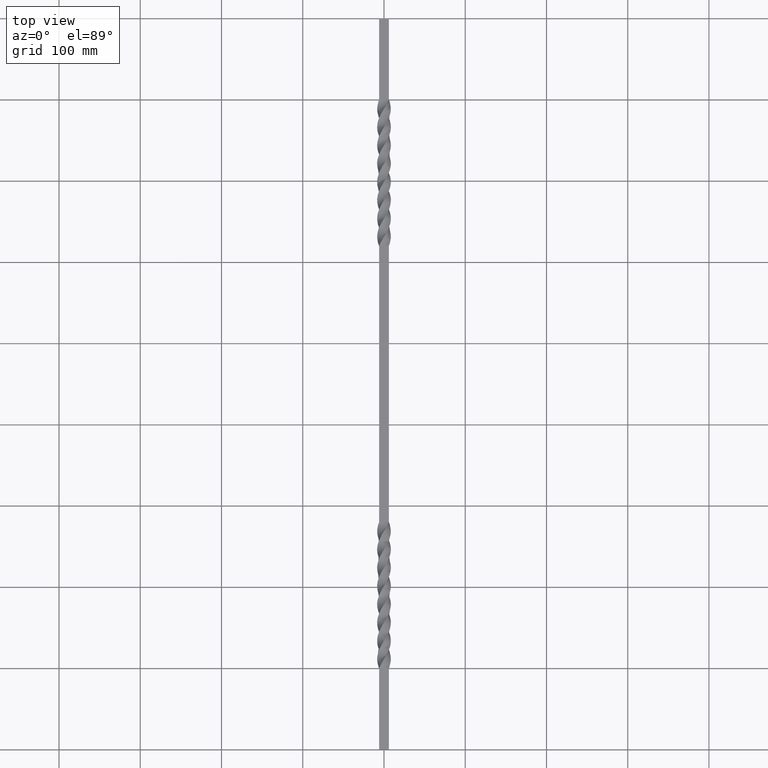
[diagram: clean part render]
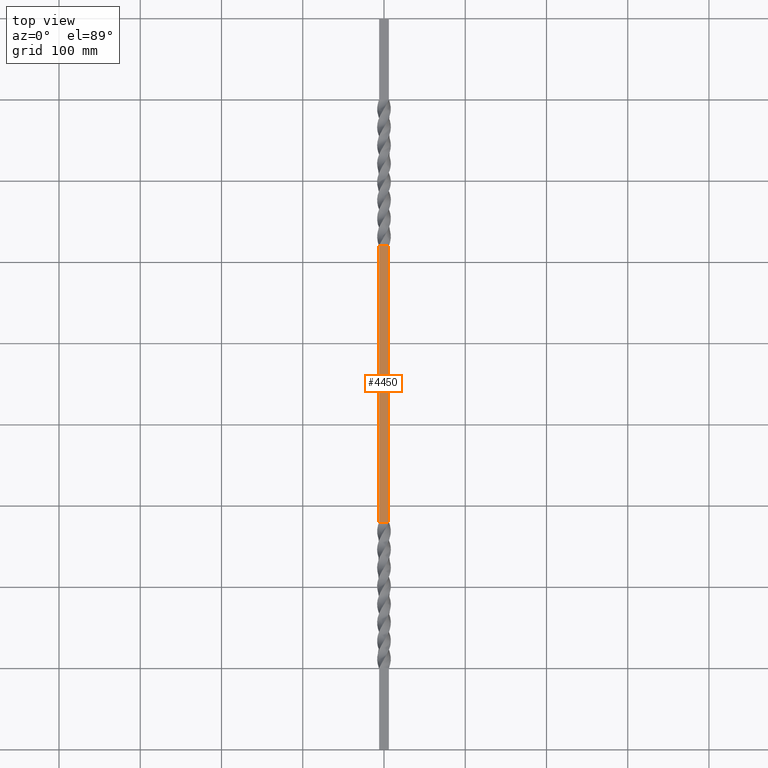
[diagram: same view with one face highlighted and labeled with its STEP entity id]
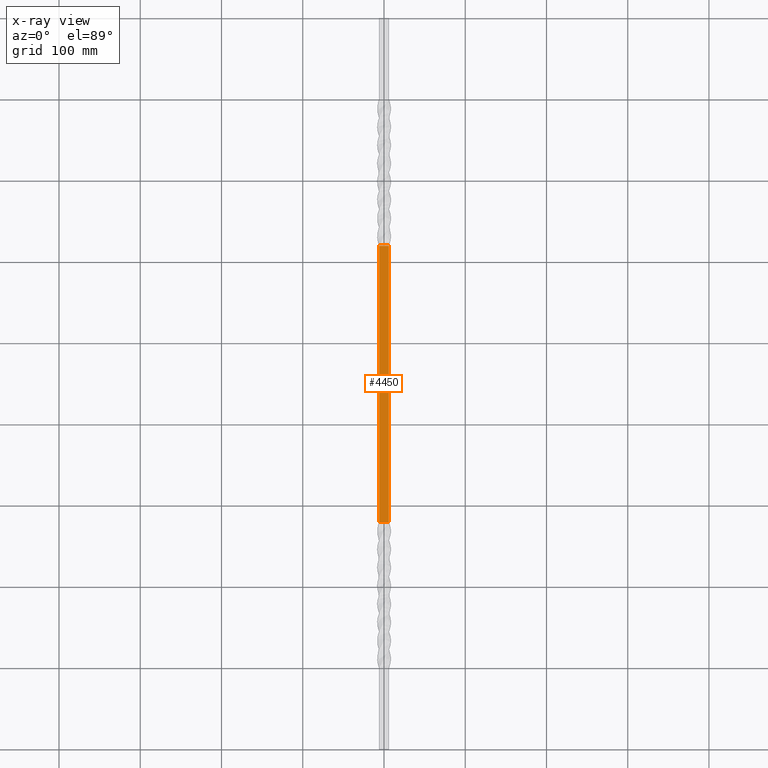
[diagram: x-ray of the same camera — body ghosted, the highlighted face saturated]
A machine part, top view. The second image highlights one B-rep face of the part: STEP entity #4450.
The next image is the same camera in x-ray: the body ghosted, the highlighted face saturated — about 0% of this face is hidden behind the body in this view.
In plain terms, the highlighted planar face has unit normal (0, 0, -1).
Its self-contained STEP definition (entity closure, byte-faithful):
#276 = VERTEX_POINT ( 'NONE', #9994 ) ;
#658 = DIRECTION ( 'NONE',  ( 1.000000000000000000, 1.834180957847745753E-11, 3.369085433494759616E-09 ) ) ;
#839 = VECTOR ( 'NONE', #658, 1000.000000000000000 ) ;
#936 = VECTOR ( 'NONE', #2934, 1000.000000000000000 ) ;
#1290 = EDGE_CURVE ( 'NONE', #1567, #3446, #4354, .T. ) ;
#1567 = VERTEX_POINT ( 'NONE', #2331 ) ;
#1895 = FACE_OUTER_BOUND ( 'NONE', #3113, .T. ) ;
#2056 = CARTESIAN_POINT ( 'NONE',  ( -6.000000006993791324, 800.0019999863817475, 5.999999997126825413 ) ) ;
#2096 = DIRECTION ( 'NONE',  ( 2.394312322241887009E-10, 0.000000000000000000, -1.000000000000000000 ) ) ;
#2331 = CARTESIAN_POINT ( 'NONE',  ( -6.000000006993791324, 279.9999999863817948, 5.999999997126825413 ) ) ;
#2363 = CARTESIAN_POINT ( 'NONE',  ( -6.000000006993791324, 800.0019999863817475, 5.999999997126825413 ) ) ;
#2934 = DIRECTION ( 'NONE',  ( -0.000000000000000000, -1.000000000000000000, -0.000000000000000000 ) ) ;
#3113 = EDGE_LOOP ( 'NONE', ( #4293, #7048, #5617, #5734 ) ) ;
#3446 = VERTEX_POINT ( 'NONE', #8123 ) ;
#3974 = EDGE_CURVE ( 'NONE', #276, #1567, #9041, .T. ) ;
#3988 = EDGE_CURVE ( 'NONE', #276, #6961, #6285, .T. ) ;
#4127 = CARTESIAN_POINT ( 'NONE',  ( 0.000000000000000000, 280.0000000000000000, 6.000000000000000000 ) ) ;
#4293 = ORIENTED_EDGE ( 'NONE', *, *, #9247, .F. ) ;
#4354 = LINE ( 'NONE', #4127, #6328 ) ;
#4450 = ADVANCED_FACE ( 'NONE', ( #1895 ), #6155, .F. ) ;
#5361 = DIRECTION ( 'NONE',  ( -1.000000000000000000, 0.000000000000000000, -2.394312322241887009E-10 ) ) ;
#5617 = ORIENTED_EDGE ( 'NONE', *, *, #3974, .T. ) ;
#5656 = CARTESIAN_POINT ( 'NONE',  ( -2.021438940714992416E-08, 619.9999999442085254, 5.999999991556416390 ) ) ;
#5734 = ORIENTED_EDGE ( 'NONE', *, *, #1290, .T. ) ;
#6155 = PLANE ( 'NONE',  #9330 ) ;
#6282 = CARTESIAN_POINT ( 'NONE',  ( 6.000000000000000000, 619.9999999999898819, 6.000000000000000000 ) ) ;
#6285 = LINE ( 'NONE', #5656, #839 ) ;
#6328 = VECTOR ( 'NONE', #7392, 1000.000000000000000 ) ;
#6961 = VERTEX_POINT ( 'NONE', #6282 ) ;
#7048 = ORIENTED_EDGE ( 'NONE', *, *, #3988, .F. ) ;
#7074 = CARTESIAN_POINT ( 'NONE',  ( 6.000000000000000000, 800.0019999863817475, 6.000000000000000000 ) ) ;
#7392 = DIRECTION ( 'NONE',  ( 1.000000000000000000, 0.000000000000000000, -0.000000000000000000 ) ) ;
#8123 = CARTESIAN_POINT ( 'NONE',  ( 6.000000000000000000, 280.0000000000000000, 6.000000000000000000 ) ) ;
#8249 = VECTOR ( 'NONE', #9749, 1000.000000000000000 ) ;
#8609 = LINE ( 'NONE', #7074, #936 ) ;
#9041 = LINE ( 'NONE', #2363, #8249 ) ;
#9247 = EDGE_CURVE ( 'NONE', #6961, #3446, #8609, .T. ) ;
#9330 = AXIS2_PLACEMENT_3D ( 'NONE', #2056, #2096, #5361 ) ;
#9749 = DIRECTION ( 'NONE',  ( -0.000000000000000000, -1.000000000000000000, -0.000000000000000000 ) ) ;
#9994 = CARTESIAN_POINT ( 'NONE',  ( -6.000000006993791324, 619.9999999668445980, 5.999999997126825413 ) ) ;